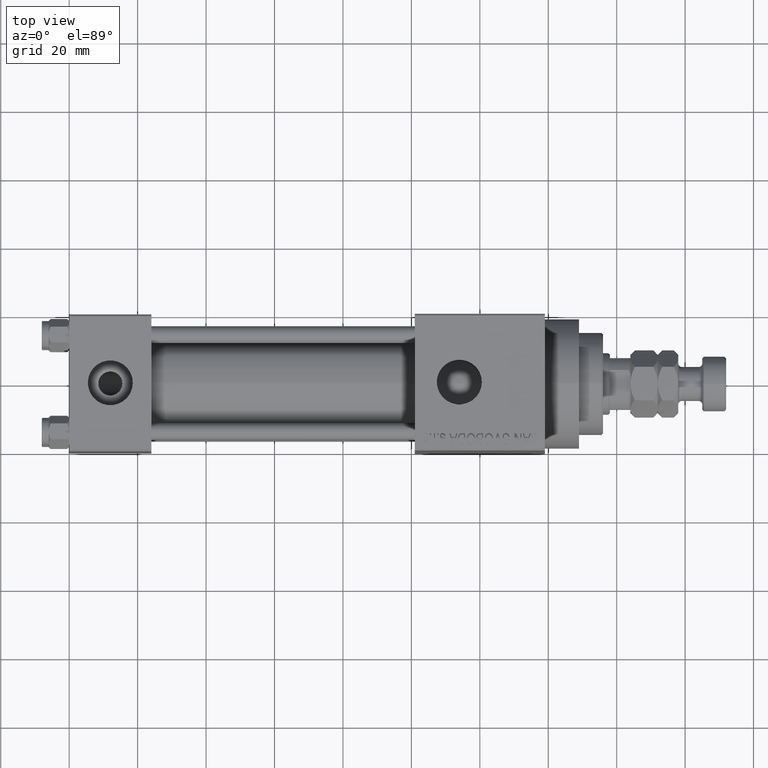
[diagram: clean part render]
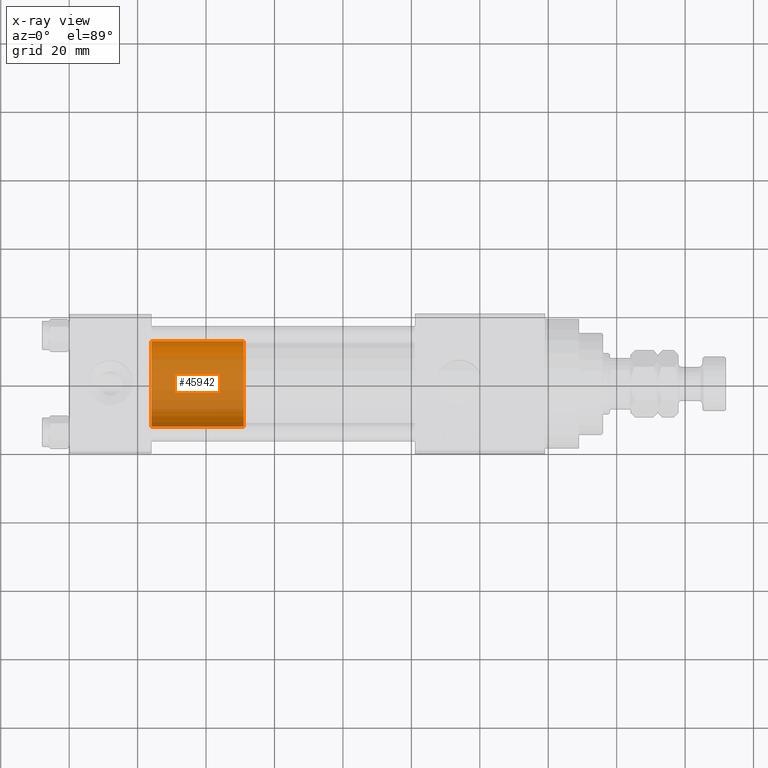
[diagram: x-ray — body ghosted, one internal face saturated and labeled with its STEP entity id]
A machine part, top view, then the same camera in x-ray: the body is ghosted and one INTERNAL B-rep face — a face not visible from any outside direction — is saturated and labeled: STEP entity #45942.
In plain terms, the highlighted cylindrical surface (partial cylindrical patch) has radius 12.5 mm, axis along (-1, 0, 0).
Its self-contained STEP definition (entity closure, byte-faithful):
#135 = CARTESIAN_POINT ( 'NONE',  ( 0.000000000000000000, 0.000000000000000000, 0.000000000000000000 ) ) ;
#619 = ORIENTED_EDGE ( 'NONE', *, *, #8706, .F. ) ;
#942 = CARTESIAN_POINT ( 'NONE',  ( 12.50000000000000000, 1.530808498934191521E-15, 27.00000000000000000 ) ) ;
#3236 = CARTESIAN_POINT ( 'NONE',  ( 0.000000000000000000, 0.000000000000000000, 27.00000000000000000 ) ) ;
#4418 = ORIENTED_EDGE ( 'NONE', *, *, #41220, .T. ) ;
#4955 = VECTOR ( 'NONE', #38421, 1000.000000000000000 ) ;
#5131 = CARTESIAN_POINT ( 'NONE',  ( 12.50000000000000000, 1.530808498934191521E-15, 0.000000000000000000 ) ) ;
#6730 = CARTESIAN_POINT ( 'NONE',  ( -12.50000000000000000, 0.000000000000000000, 0.000000000000000000 ) ) ;
#7185 = DIRECTION ( 'NONE',  ( -1.000000000000000000, 0.000000000000000000, 0.000000000000000000 ) ) ;
#8057 = CIRCLE ( 'NONE', #18270, 12.50000000000000000 ) ;
#8516 = VECTOR ( 'NONE', #26580, 1000.000000000000000 ) ;
#8706 = EDGE_CURVE ( 'NONE', #17679, #29697, #18445, .T. ) ;
#11506 = DIRECTION ( 'NONE',  ( 0.000000000000000000, 0.000000000000000000, 1.000000000000000000 ) ) ;
#12577 = EDGE_CURVE ( 'NONE', #45537, #17679, #36719, .T. ) ;
#14104 = CYLINDRICAL_SURFACE ( 'NONE', #17562, 12.50000000000000000 ) ;
#15198 = CARTESIAN_POINT ( 'NONE',  ( 0.000000000000000000, 0.000000000000000000, 27.00000000000000000 ) ) ;
#17562 = AXIS2_PLACEMENT_3D ( 'NONE', #3236, #29133, #7185 ) ;
#17679 = VERTEX_POINT ( 'NONE', #25519 ) ;
#18270 = AXIS2_PLACEMENT_3D ( 'NONE', #135, #30701, #26997 ) ;
#18445 = LINE ( 'NONE', #33494, #8516 ) ;
#22845 = DIRECTION ( 'NONE',  ( 1.000000000000000000, 0.000000000000000000, 0.000000000000000000 ) ) ;
#25519 = CARTESIAN_POINT ( 'NONE',  ( -12.50000000000000000, 0.000000000000000000, 27.00000000000000000 ) ) ;
#26580 = DIRECTION ( 'NONE',  ( -0.000000000000000000, -0.000000000000000000, -1.000000000000000000 ) ) ;
#26997 = DIRECTION ( 'NONE',  ( 1.000000000000000000, 0.000000000000000000, 0.000000000000000000 ) ) ;
#29133 = DIRECTION ( 'NONE',  ( -0.000000000000000000, -0.000000000000000000, -1.000000000000000000 ) ) ;
#29697 = VERTEX_POINT ( 'NONE', #6730 ) ;
#30701 = DIRECTION ( 'NONE',  ( 0.000000000000000000, 0.000000000000000000, 1.000000000000000000 ) ) ;
#31889 = ORIENTED_EDGE ( 'NONE', *, *, #43257, .T. ) ;
#33494 = CARTESIAN_POINT ( 'NONE',  ( -12.50000000000000000, 0.000000000000000000, 27.00000000000000000 ) ) ;
#36719 = CIRCLE ( 'NONE', #39878, 12.50000000000000000 ) ;
#38421 = DIRECTION ( 'NONE',  ( -0.000000000000000000, -0.000000000000000000, -1.000000000000000000 ) ) ;
#39878 = AXIS2_PLACEMENT_3D ( 'NONE', #15198, #11506, #22845 ) ;
#40951 = FACE_OUTER_BOUND ( 'NONE', #45979, .T. ) ;
#41220 = EDGE_CURVE ( 'NONE', #44284, #29697, #8057, .T. ) ;
#41450 = CARTESIAN_POINT ( 'NONE',  ( 12.50000000000000000, 1.530808498934191521E-15, 27.00000000000000000 ) ) ;
#42354 = LINE ( 'NONE', #942, #4955 ) ;
#43257 = EDGE_CURVE ( 'NONE', #45537, #44284, #42354, .T. ) ;
#44284 = VERTEX_POINT ( 'NONE', #5131 ) ;
#45537 = VERTEX_POINT ( 'NONE', #41450 ) ;
#45942 = ADVANCED_FACE ( 'NONE', ( #40951 ), #14104, .T. ) ;
#45979 = EDGE_LOOP ( 'NONE', ( #47946, #31889, #4418, #619 ) ) ;
#47946 = ORIENTED_EDGE ( 'NONE', *, *, #12577, .F. ) ;